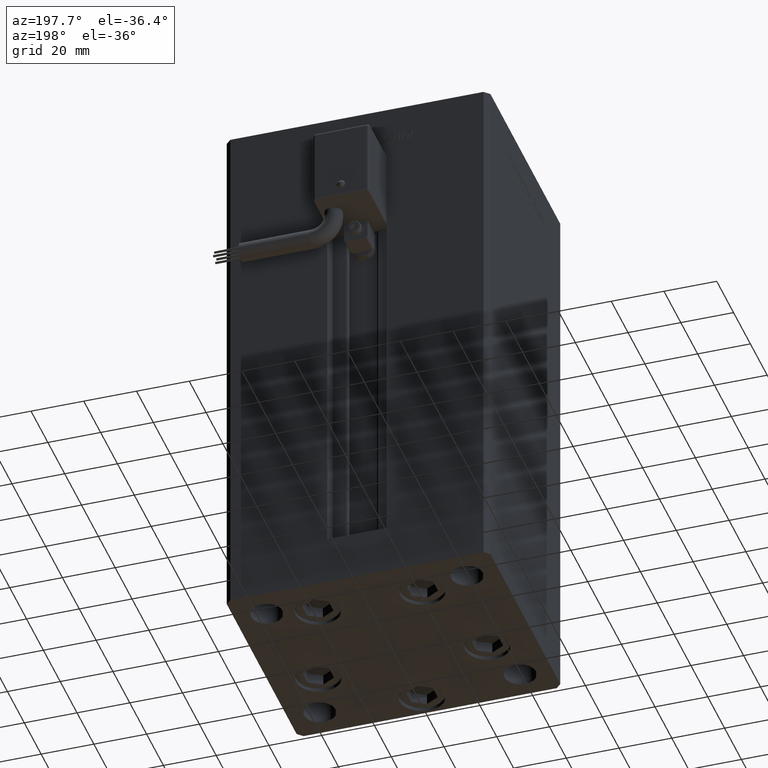
[diagram: clean part render]
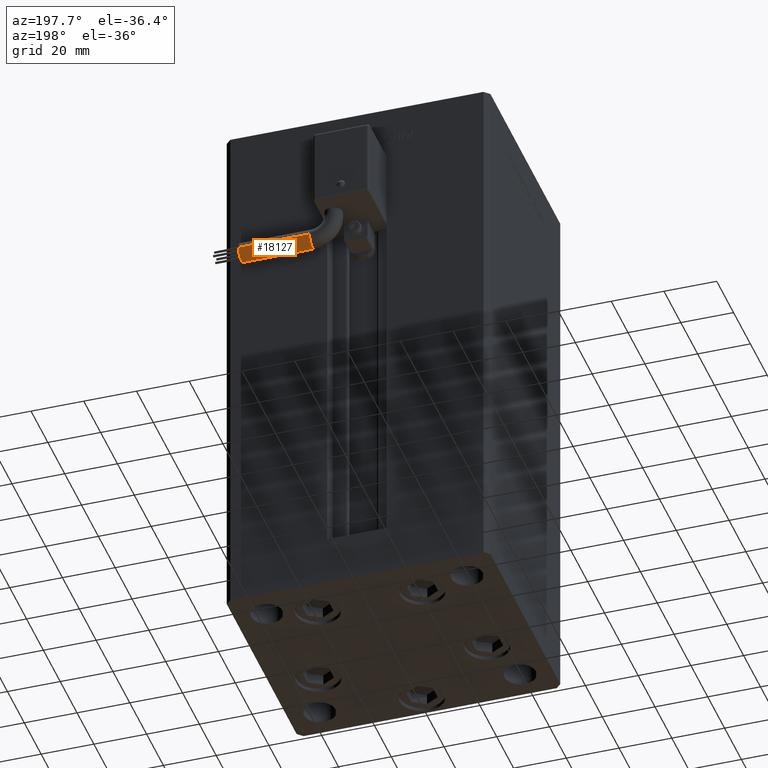
[diagram: same view with one face highlighted and labeled with its STEP entity id]
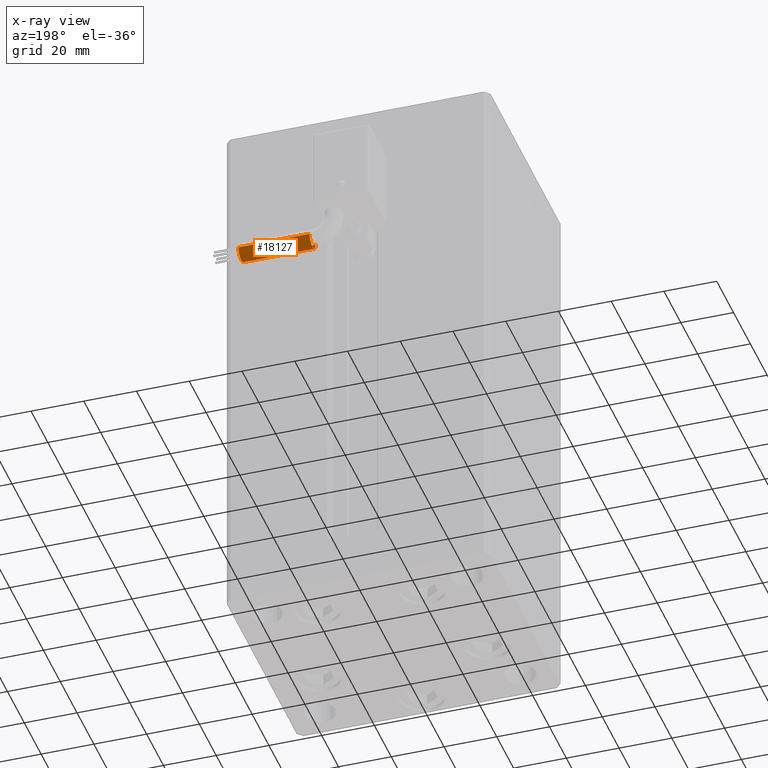
[diagram: x-ray of the same camera — body ghosted, the highlighted face saturated]
A machine part, auxiliary view. The second image highlights one B-rep face of the part: STEP entity #18127.
The next image is the same camera in x-ray: the body ghosted, the highlighted face saturated — about 0% of this face is hidden behind the body in this view.
In plain terms, the highlighted cylindrical surface (edge-blend (fillet) strip) has radius 3.5 mm, axis along (1, -0, 0).
Its self-contained STEP definition (entity closure, byte-faithful):
#981 = CARTESIAN_POINT ( 'NONE',  ( 13.79999999999999893, 42.00000000000000000, -65.00000000000000000 ) ) ;
#1146 = EDGE_CURVE ( 'NONE', #41821, #23204, #54120, .T. ) ;
#2133 = EDGE_CURVE ( 'NONE', #43234, #23204, #22295, .T. ) ;
#2791 = ORIENTED_EDGE ( 'NONE', *, *, #40578, .F. ) ;
#3375 = CARTESIAN_POINT ( 'NONE',  ( 13.79999999999999716, 38.50000000000000000, -65.00000000000000000 ) ) ;
#3686 = AXIS2_PLACEMENT_3D ( 'NONE', #46595, #29315, #8401 ) ;
#4179 = CARTESIAN_POINT ( 'NONE',  ( 13.79999999999999893, 42.00000000000000000, -65.00000000000000000 ) ) ;
#4493 = LINE ( 'NONE', #3375, #48612 ) ;
#8401 = DIRECTION ( 'NONE',  ( -4.956352788505158337E-16, -1.000000000000000000, 0.000000000000000000 ) ) ;
#8823 = DIRECTION ( 'NONE',  ( 0.000000000000000000, 0.000000000000000000, -1.000000000000000000 ) ) ;
#12563 = DIRECTION ( 'NONE',  ( 1.000000000000000000, 0.000000000000000000, 2.220446049250000002E-16 ) ) ;
#18127 = ADVANCED_FACE ( 'NONE', ( #46039 ), #45498, .T. ) ;
#19258 = CIRCLE ( 'NONE', #32635, 3.500000000000003109 ) ;
#20185 = ORIENTED_EDGE ( 'NONE', *, *, #34956, .T. ) ;
#21168 = ORIENTED_EDGE ( 'NONE', *, *, #30315, .T. ) ;
#21210 = DIRECTION ( 'NONE',  ( 0.000000000000000000, 0.000000000000000000, -1.000000000000000000 ) ) ;
#21530 = CARTESIAN_POINT ( 'NONE',  ( 40.80000000000000426, 38.50000000000000000, -65.00000000000000000 ) ) ;
#22295 = CIRCLE ( 'NONE', #38310, 3.500000000000003109 ) ;
#23204 = VERTEX_POINT ( 'NONE', #27391 ) ;
#25135 = DIRECTION ( 'NONE',  ( 1.000000000000000000, -2.599999999999999847E-16, 2.220446049250000002E-16 ) ) ;
#25315 = CIRCLE ( 'NONE', #42251, 3.500000000000003109 ) ;
#27391 = CARTESIAN_POINT ( 'NONE',  ( 40.80000000000000426, 45.50000000000000711, -65.00000000000000000 ) ) ;
#27634 = CARTESIAN_POINT ( 'NONE',  ( 13.79999999999999893, 45.50000000000000711, -65.00000000000000000 ) ) ;
#29315 = DIRECTION ( 'NONE',  ( 1.000000000000000000, -2.599999999999999847E-16, 2.220446049250000002E-16 ) ) ;
#30315 = EDGE_CURVE ( 'NONE', #40600, #41821, #25315, .T. ) ;
#32298 = CARTESIAN_POINT ( 'NONE',  ( 40.80000000000000426, 42.00000000000000000, -65.00000000000000000 ) ) ;
#32635 = AXIS2_PLACEMENT_3D ( 'NONE', #4179, #12563, #21210 ) ;
#34471 = DIRECTION ( 'NONE',  ( 1.000000000000000000, 0.000000000000000000, 2.220446049250000002E-16 ) ) ;
#34956 = EDGE_CURVE ( 'NONE', #52834, #40600, #19258, .T. ) ;
#35057 = ORIENTED_EDGE ( 'NONE', *, *, #2133, .F. ) ;
#37955 = CARTESIAN_POINT ( 'NONE',  ( 13.79999999999999893, 42.00000000000000000, -68.50000000000000000 ) ) ;
#38086 = EDGE_LOOP ( 'NONE', ( #20185, #21168, #51710, #35057, #2791 ) ) ;
#38310 = AXIS2_PLACEMENT_3D ( 'NONE', #32298, #45389, #40374 ) ;
#40064 = VECTOR ( 'NONE', #25135, 1000.000000000000000 ) ;
#40374 = DIRECTION ( 'NONE',  ( 0.000000000000000000, 0.000000000000000000, -1.000000000000000000 ) ) ;
#40578 = EDGE_CURVE ( 'NONE', #52834, #43234, #4493, .T. ) ;
#40600 = VERTEX_POINT ( 'NONE', #37955 ) ;
#41821 = VERTEX_POINT ( 'NONE', #27634 ) ;
#42251 = AXIS2_PLACEMENT_3D ( 'NONE', #981, #34471, #8823 ) ;
#42415 = DIRECTION ( 'NONE',  ( 1.000000000000000000, -2.599999999999999847E-16, 2.220446049250000002E-16 ) ) ;
#43234 = VERTEX_POINT ( 'NONE', #21530 ) ;
#45389 = DIRECTION ( 'NONE',  ( 1.000000000000000000, 0.000000000000000000, 2.220446049250000002E-16 ) ) ;
#45498 = CYLINDRICAL_SURFACE ( 'NONE', #3686, 3.500000000000003109 ) ;
#45503 = CARTESIAN_POINT ( 'NONE',  ( 13.80000000000000071, 45.50000000000000711, -65.00000000000000000 ) ) ;
#46039 = FACE_OUTER_BOUND ( 'NONE', #38086, .T. ) ;
#46595 = CARTESIAN_POINT ( 'NONE',  ( 13.79999999999999893, 42.00000000000000000, -65.00000000000000000 ) ) ;
#48193 = CARTESIAN_POINT ( 'NONE',  ( 13.79999999999999893, 38.50000000000000000, -65.00000000000000000 ) ) ;
#48612 = VECTOR ( 'NONE', #42415, 1000.000000000000000 ) ;
#51710 = ORIENTED_EDGE ( 'NONE', *, *, #1146, .T. ) ;
#52834 = VERTEX_POINT ( 'NONE', #48193 ) ;
#54120 = LINE ( 'NONE', #45503, #40064 ) ;